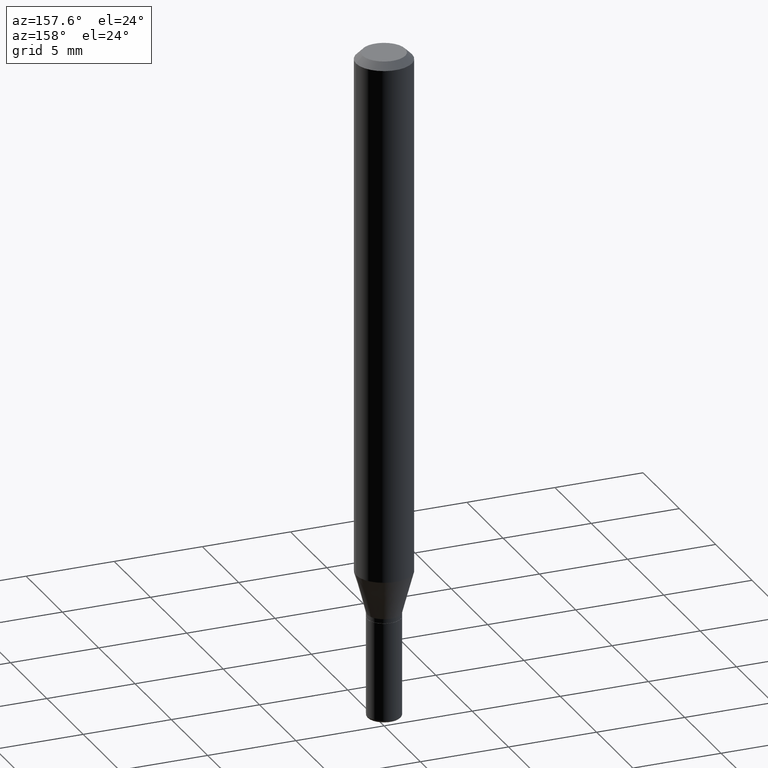
[diagram: clean part render]
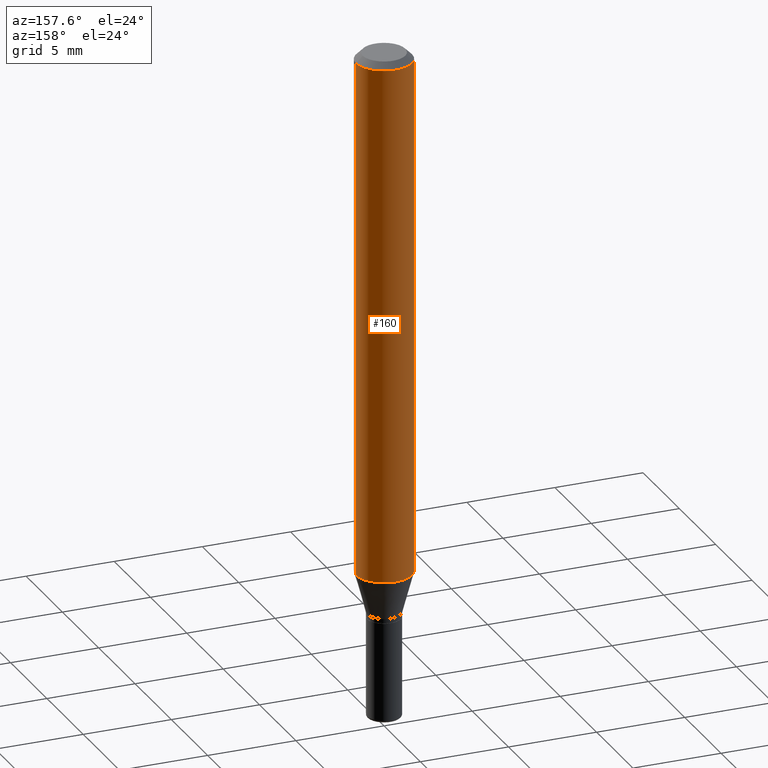
[diagram: same view with one face highlighted and labeled with its STEP entity id]
A machine part, auxiliary view. The second image highlights one B-rep face of the part: STEP entity #160.
In plain terms, the highlighted cylindrical surface (edge-blend (fillet) strip) has radius 1.5875 mm, axis along (-0, 0, 1).
Its self-contained STEP definition (entity closure, byte-faithful):
#14 = DIRECTION ( 'NONE',  ( -2.445468806185136877E-29, 3.491481338843145188E-15, 1.000000000000000000 ) ) ;
#31 = CARTESIAN_POINT ( 'NONE',  ( 2.865352693999005712E-29, -4.090964249880549639E-15, -1.171698729810778605 ) ) ;
#32 = CARTESIAN_POINT ( 'NONE',  ( -0.06250000000000000000, -3.646875040030487022E-15, -1.171698729810778605 ) ) ;
#38 = CARTESIAN_POINT ( 'NONE',  ( 0.000000000000000000, 0.000000000000000000, 0.000000000000000000 ) ) ;
#59 = ORIENTED_EDGE ( 'NONE', *, *, #119, .F. ) ;
#69 = VERTEX_POINT ( 'NONE', #201 ) ;
#80 = CARTESIAN_POINT ( 'NONE',  ( 0.06250000000000000000, -4.527399417235941308E-15, -1.171698729810778605 ) ) ;
#102 = CIRCLE ( 'NONE', #259, 0.06250000000000000000 ) ;
#103 = ORIENTED_EDGE ( 'NONE', *, *, #171, .T. ) ;
#119 = EDGE_CURVE ( 'NONE', #144, #69, #102, .T. ) ;
#125 = EDGE_CURVE ( 'NONE', #355, #144, #438, .T. ) ;
#144 = VERTEX_POINT ( 'NONE', #353 ) ;
#148 = FACE_OUTER_BOUND ( 'NONE', #474, .T. ) ;
#153 = DIRECTION ( 'NONE',  ( -2.445468806185136597E-29, 3.491481338843145583E-15, 1.000000000000000000 ) ) ;
#160 = ADVANCED_FACE ( 'NONE', ( #148 ), #442, .T. ) ;
#162 = DIRECTION ( 'NONE',  ( 1.000000000000000000, -6.982962677686262766E-15, 0.000000000000000000 ) ) ;
#166 = AXIS2_PLACEMENT_3D ( 'NONE', #38, #515, #357 ) ;
#171 = EDGE_CURVE ( 'NONE', #355, #314, #462, .T. ) ;
#195 = DIRECTION ( 'NONE',  ( -2.445468806185136597E-29, 3.491481338843145583E-15, 1.000000000000000000 ) ) ;
#201 = CARTESIAN_POINT ( 'NONE',  ( -0.06250000000000000000, -1.627579025131535151E-15, -0.01499999999999970281 ) ) ;
#222 = CARTESIAN_POINT ( 'NONE',  ( -0.06250000000000000000, 4.440892098500626162E-16, -3.074334431409316114E-30 ) ) ;
#237 = DIRECTION ( 'NONE',  ( 1.000000000000000000, -6.982962677686266711E-15, 0.000000000000000000 ) ) ;
#241 = CARTESIAN_POINT ( 'NONE',  ( 3.668203209277632395E-31, -5.237222008264614861E-17, -0.01499999999999970281 ) ) ;
#259 = AXIS2_PLACEMENT_3D ( 'NONE', #241, #195, #237 ) ;
#277 = VECTOR ( 'NONE', #402, 39.37007874015748143 ) ;
#297 = LINE ( 'NONE', #222, #388 ) ;
#310 = ORIENTED_EDGE ( 'NONE', *, *, #484, .T. ) ;
#314 = VERTEX_POINT ( 'NONE', #32 ) ;
#353 = CARTESIAN_POINT ( 'NONE',  ( 0.06250000000000000000, -4.888073874380378612E-16, -0.01499999999999970281 ) ) ;
#355 = VERTEX_POINT ( 'NONE', #80 ) ;
#357 = DIRECTION ( 'NONE',  ( 1.000000000000000000, -6.982962677686266711E-15, 4.876176775795935793E-29 ) ) ;
#369 = AXIS2_PLACEMENT_3D ( 'NONE', #31, #153, #162 ) ;
#388 = VECTOR ( 'NONE', #14, 39.37007874015748143 ) ;
#391 = CARTESIAN_POINT ( 'NONE',  ( 0.06250000000000000000, -4.364351673553916694E-16, 3.047610484872459871E-30 ) ) ;
#402 = DIRECTION ( 'NONE',  ( -2.445468806185136877E-29, 3.491481338843145188E-15, 1.000000000000000000 ) ) ;
#422 = ORIENTED_EDGE ( 'NONE', *, *, #125, .F. ) ;
#438 = LINE ( 'NONE', #391, #277 ) ;
#442 = CYLINDRICAL_SURFACE ( 'NONE', #166, 0.06250000000000000000 ) ;
#462 = CIRCLE ( 'NONE', #369, 0.06250000000000000000 ) ;
#474 = EDGE_LOOP ( 'NONE', ( #103, #310, #59, #422 ) ) ;
#484 = EDGE_CURVE ( 'NONE', #314, #69, #297, .T. ) ;
#515 = DIRECTION ( 'NONE',  ( -2.445468806185136597E-29, 3.491481338843145583E-15, 1.000000000000000000 ) ) ;